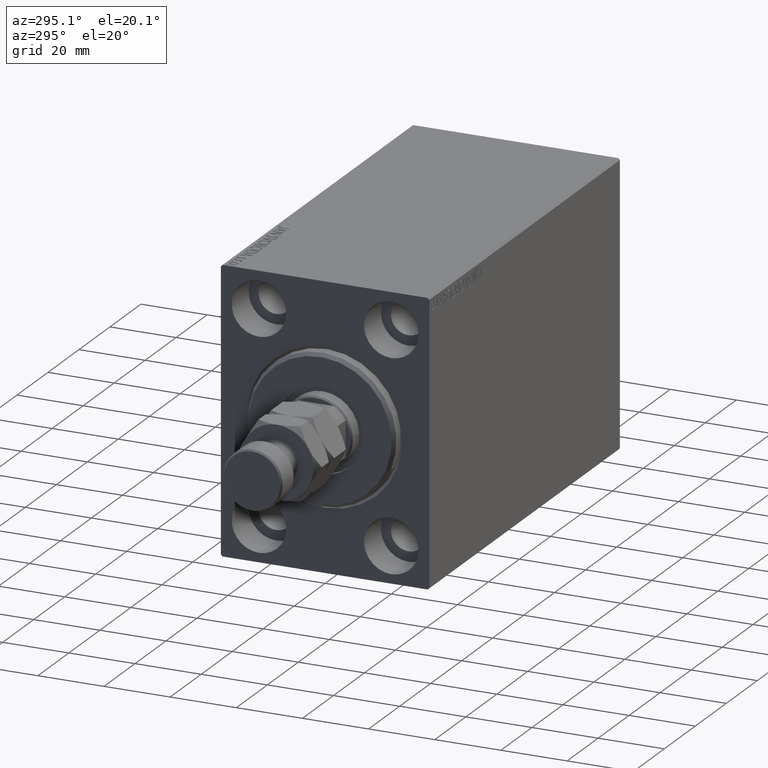
[diagram: clean part render]
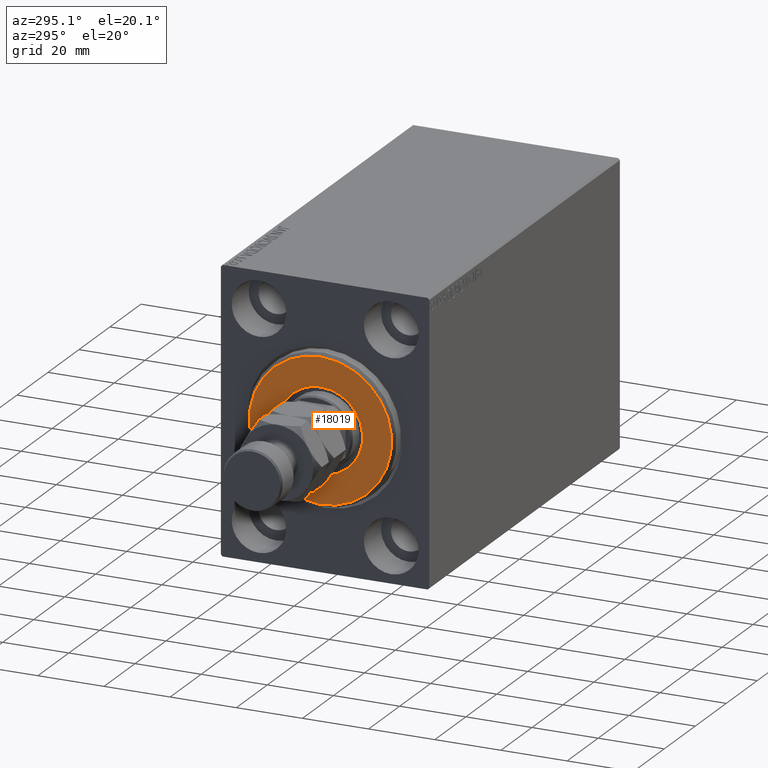
[diagram: same view with one face highlighted and labeled with its STEP entity id]
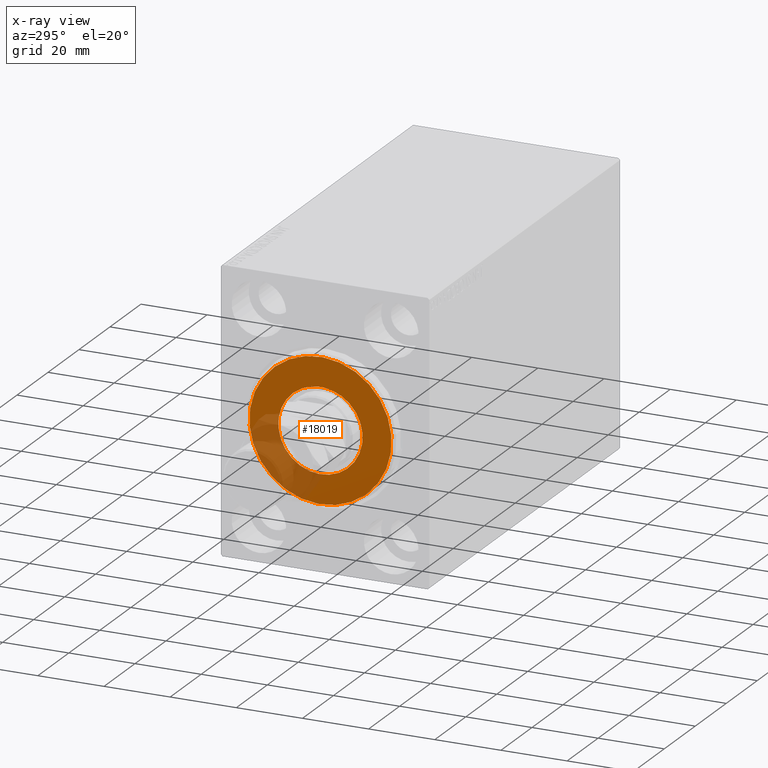
[diagram: x-ray of the same camera — body ghosted, the highlighted face saturated]
A machine part, auxiliary view. The second image highlights one B-rep face of the part: STEP entity #18019.
The next image is the same camera in x-ray: the body ghosted, the highlighted face saturated — about 24% of this face is hidden behind the body in this view.
In plain terms, the highlighted planar face has unit normal (-1, 0, 0).
Its self-contained STEP definition (entity closure, byte-faithful):
#1368 = AXIS2_PLACEMENT_3D ( 'NONE', #2447, #2673, #6355 ) ;
#1889 = DIRECTION ( 'NONE',  ( 0.000000000000000000, 0.000000000000000000, -1.000000000000000000 ) ) ;
#2366 = DIRECTION ( 'NONE',  ( 0.000000000000000000, 0.000000000000000000, -1.000000000000000000 ) ) ;
#2378 = VERTEX_POINT ( 'NONE', #7841 ) ;
#2421 = ORIENTED_EDGE ( 'NONE', *, *, #23728, .T. ) ;
#2447 = CARTESIAN_POINT ( 'NONE',  ( 3.000000000000000000, 0.000000000000000000, 0.000000000000000000 ) ) ;
#2673 = DIRECTION ( 'NONE',  ( 1.000000000000000000, -0.000000000000000000, 0.000000000000000000 ) ) ;
#4178 = CARTESIAN_POINT ( 'NONE',  ( 3.000000000000000000, 0.000000000000000000, 0.000000000000000000 ) ) ;
#6355 = DIRECTION ( 'NONE',  ( 0.000000000000000000, 0.000000000000000000, -1.000000000000000000 ) ) ;
#6397 = EDGE_LOOP ( 'NONE', ( #45025, #2421 ) ) ;
#6783 = AXIS2_PLACEMENT_3D ( 'NONE', #25902, #8448, #22462 ) ;
#7841 = CARTESIAN_POINT ( 'NONE',  ( 3.000000000000000000, 0.000000000000000000, 21.50000000000000355 ) ) ;
#8252 = CIRCLE ( 'NONE', #6783, 21.50000000000000355 ) ;
#8448 = DIRECTION ( 'NONE',  ( 1.000000000000000000, -0.000000000000000000, 0.000000000000000000 ) ) ;
#8793 = DIRECTION ( 'NONE',  ( -1.000000000000000000, 0.000000000000000000, -0.000000000000000000 ) ) ;
#9693 = ORIENTED_EDGE ( 'NONE', *, *, #26521, .T. ) ;
#10232 = CARTESIAN_POINT ( 'NONE',  ( 3.000000000000000000, 1.561424668912874914E-15, -12.75000000000000000 ) ) ;
#12246 = VERTEX_POINT ( 'NONE', #10232 ) ;
#12667 = AXIS2_PLACEMENT_3D ( 'NONE', #22361, #8793, #1889 ) ;
#14856 = DIRECTION ( 'NONE',  ( 1.000000000000000000, -0.000000000000000000, 0.000000000000000000 ) ) ;
#15086 = CARTESIAN_POINT ( 'NONE',  ( 3.000000000000000000, 0.000000000000000000, 0.000000000000000000 ) ) ;
#16229 = FACE_OUTER_BOUND ( 'NONE', #6397, .T. ) ;
#16278 = AXIS2_PLACEMENT_3D ( 'NONE', #4178, #18874, #18427 ) ;
#18019 = ADVANCED_FACE ( 'NONE', ( #16229, #37356 ), #19918, .T. ) ;
#18427 = DIRECTION ( 'NONE',  ( 0.000000000000000000, 0.000000000000000000, -1.000000000000000000 ) ) ;
#18874 = DIRECTION ( 'NONE',  ( -1.000000000000000000, 0.000000000000000000, -0.000000000000000000 ) ) ;
#19918 = PLANE ( 'NONE',  #1368 ) ;
#22361 = CARTESIAN_POINT ( 'NONE',  ( 3.000000000000000000, 0.000000000000000000, 0.000000000000000000 ) ) ;
#22462 = DIRECTION ( 'NONE',  ( 0.000000000000000000, 0.000000000000000000, -1.000000000000000000 ) ) ;
#23728 = EDGE_CURVE ( 'NONE', #41798, #2378, #32352, .T. ) ;
#24196 = CARTESIAN_POINT ( 'NONE',  ( 3.000000000000000000, 0.000000000000000000, 12.75000000000000000 ) ) ;
#25474 = CARTESIAN_POINT ( 'NONE',  ( 3.000000000000000000, 2.694222958124177598E-15, -21.50000000000000355 ) ) ;
#25902 = CARTESIAN_POINT ( 'NONE',  ( 3.000000000000000000, 0.000000000000000000, 0.000000000000000000 ) ) ;
#26521 = EDGE_CURVE ( 'NONE', #12246, #44821, #35336, .T. ) ;
#26596 = CIRCLE ( 'NONE', #12667, 12.75000000000000000 ) ;
#27252 = EDGE_CURVE ( 'NONE', #2378, #41798, #8252, .T. ) ;
#28680 = EDGE_CURVE ( 'NONE', #44821, #12246, #26596, .T. ) ;
#29395 = AXIS2_PLACEMENT_3D ( 'NONE', #15086, #14856, #2366 ) ;
#32352 = CIRCLE ( 'NONE', #29395, 21.50000000000000355 ) ;
#35336 = CIRCLE ( 'NONE', #16278, 12.75000000000000000 ) ;
#37356 = FACE_BOUND ( 'NONE', #44498, .T. ) ;
#41798 = VERTEX_POINT ( 'NONE', #25474 ) ;
#42116 = ORIENTED_EDGE ( 'NONE', *, *, #28680, .T. ) ;
#44498 = EDGE_LOOP ( 'NONE', ( #42116, #9693 ) ) ;
#44821 = VERTEX_POINT ( 'NONE', #24196 ) ;
#45025 = ORIENTED_EDGE ( 'NONE', *, *, #27252, .T. ) ;